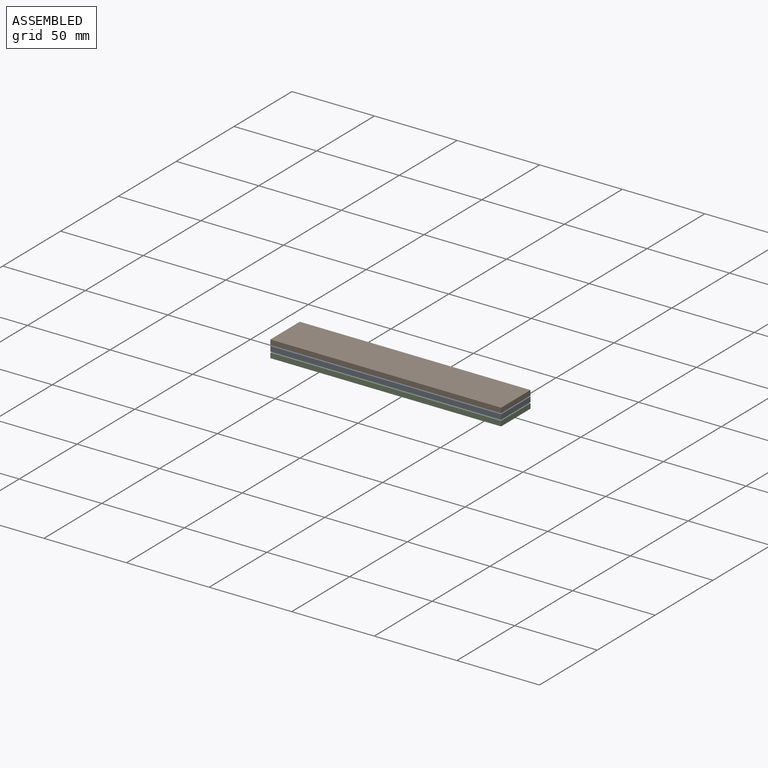
[diagram: assembled view]
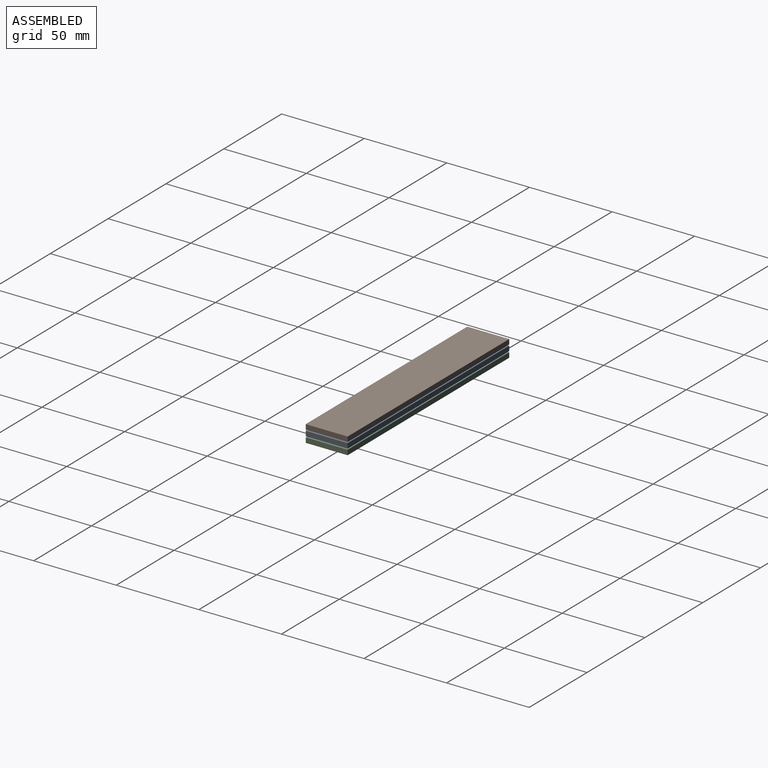
[diagram: assembled view, second angle]
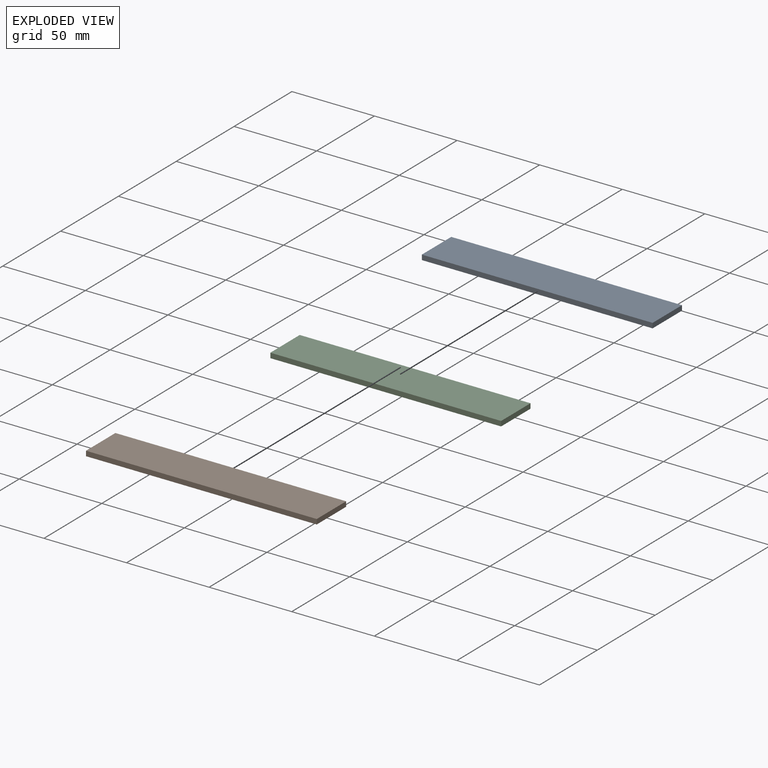
[diagram: exploded view]
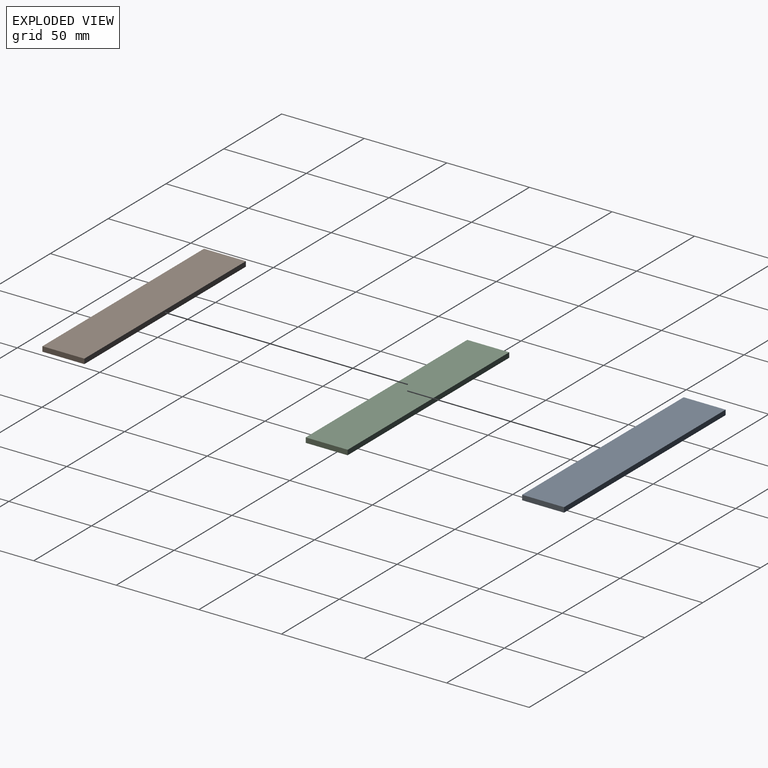
[diagram: exploded view, second angle]
ASSEMBLY  parts=3 mates=2
PART A: 6 faces, bbox 139.7x25.4x3 mm
  f0: plane 25.4x3mm, normal (-1,0,0), area 76.2mm2, adj f1,f3,f4,f5
  f1: plane 139.7x3mm, normal (0,-1,0), area 419.1mm2, adj f0,f2,f4,f5
  f2: plane 25.4x3mm, normal (1,0,0), area 76.2mm2, adj f1,f3,f4,f5
  f3: plane 139.7x3mm, normal (0,1,0), area 419.1mm2, adj f0,f2,f4,f5
  f4: plane 139.7x25.4mm, normal (0,0,1), area 3548.4mm2, adj f0,f1,f2,f3
  f5: plane 139.7x25.4mm, normal (0,0,-1), area 3548.4mm2, adj f0,f1,f2,f3
PART B: same geometry as A
PART C: same geometry as A
PLACE A t=(-6.78,-3.49,8.61)mm
PLACE B t=(-6.78,-3.49,12.21)mm
PLACE C t=(-6.78,-3.49,4.97)mm
MATE planar B.f1 <-> A.f1  axis (0,-1,0) through (-6.78,-16.19,13.71)mm
MATE planar C.f1 <-> A.f1  axis (0,-1,0) through (-6.78,-16.19,6.47)mm
